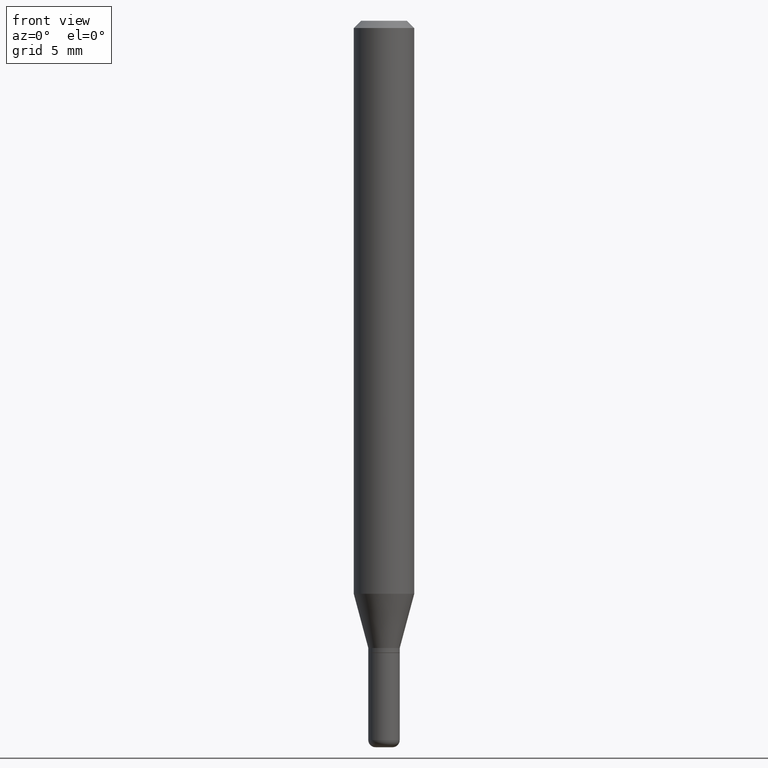
[diagram: clean part render]
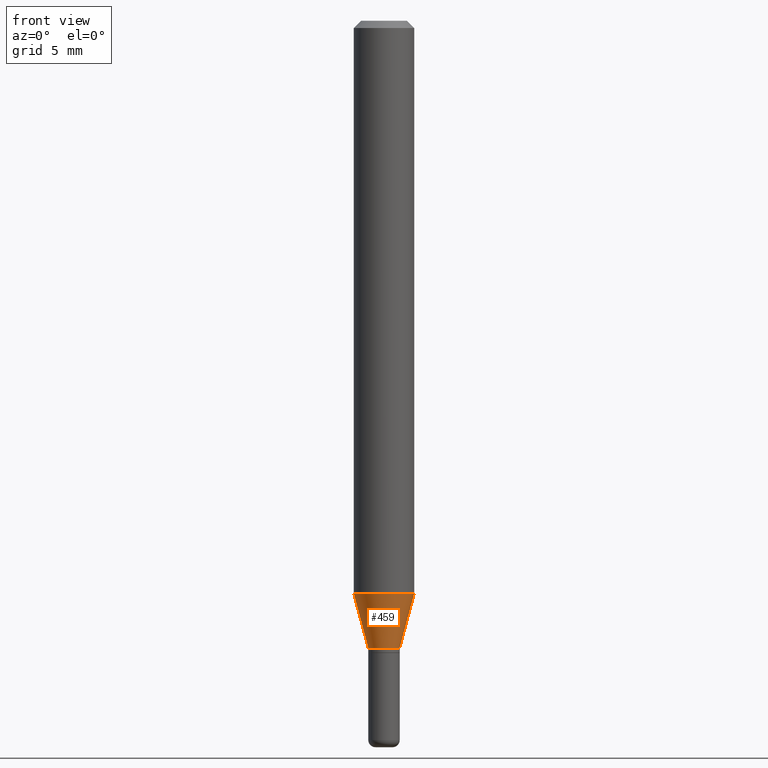
[diagram: same view with one face highlighted and labeled with its STEP entity id]
A machine part, front view. The second image highlights one B-rep face of the part: STEP entity #459.
In plain terms, the highlighted conical surface has half-angle 15 deg.
Its self-contained STEP definition (entity closure, byte-faithful):
#35 = CARTESIAN_POINT ( 'NONE',  ( 2.893083689019520084E-29, -4.130556761294637105E-15, -1.183038475772933751 ) ) ;
#48 = VERTEX_POINT ( 'NONE', #190 ) ;
#67 = DIRECTION ( 'NONE',  ( 1.000000000000000000, -6.982962677686262766E-15, 0.000000000000000000 ) ) ;
#78 = ORIENTED_EDGE ( 'NONE', *, *, #387, .T. ) ;
#101 = DIRECTION ( 'NONE',  ( -2.445468806185136597E-29, 3.491481338843145583E-15, 1.000000000000000000 ) ) ;
#105 = DIRECTION ( 'NONE',  ( 0.2588190451025206285, 1.565188264969627095E-15, 0.9659258262890682012 ) ) ;
#116 = EDGE_CURVE ( 'NONE', #327, #381, #497, .T. ) ;
#125 = AXIS2_PLACEMENT_3D ( 'NONE', #183, #508, #147 ) ;
#131 = LINE ( 'NONE', #501, #219 ) ;
#133 = CIRCLE ( 'NONE', #125, 0.03249999999999998029 ) ;
#147 = DIRECTION ( 'NONE',  ( 1.000000000000000000, -6.982962677686262766E-15, 0.000000000000000000 ) ) ;
#177 = FACE_OUTER_BOUND ( 'NONE', #221, .T. ) ;
#183 = CARTESIAN_POINT ( 'NONE',  ( 3.166882104009752139E-29, -4.521468333801874892E-15, -1.295000000000000151 ) ) ;
#190 = CARTESIAN_POINT ( 'NONE',  ( -0.03249999999999998029, -3.988504748062208899E-15, -1.295000000000000151 ) ) ;
#191 = DIRECTION ( 'NONE',  ( -2.445468806185136597E-29, 3.491481338843145583E-15, 1.000000000000000000 ) ) ;
#206 = CARTESIAN_POINT ( 'NONE',  ( -0.06250000000000000000, -3.686467551444575277E-15, -1.183038475772933751 ) ) ;
#215 = ORIENTED_EDGE ( 'NONE', *, *, #237, .F. ) ;
#219 = VECTOR ( 'NONE', #354, 39.37007874015748854 ) ;
#221 = EDGE_LOOP ( 'NONE', ( #215, #446, #78, #419 ) ) ;
#235 = VECTOR ( 'NONE', #105, 39.37007874015748854 ) ;
#237 = EDGE_CURVE ( 'NONE', #48, #327, #131, .T. ) ;
#242 = AXIS2_PLACEMENT_3D ( 'NONE', #35, #191, #67 ) ;
#260 = DIRECTION ( 'NONE',  ( 1.000000000000000000, -6.982962677686262766E-15, 0.000000000000000000 ) ) ;
#266 = CARTESIAN_POINT ( 'NONE',  ( 0.06250000000000000000, -4.566991928650029563E-15, -1.183038475772933751 ) ) ;
#280 = VERTEX_POINT ( 'NONE', #408 ) ;
#327 = VERTEX_POINT ( 'NONE', #206 ) ;
#352 = CARTESIAN_POINT ( 'NONE',  ( 0.03249999999999998029, -4.748414620826678245E-15, -1.295000000000000151 ) ) ;
#354 = DIRECTION ( 'NONE',  ( -0.2588190451025206285, 5.211531920934544731E-15, 0.9659258262890682012 ) ) ;
#380 = CARTESIAN_POINT ( 'NONE',  ( 3.166882104009752139E-29, -4.521468333801874892E-15, -1.295000000000000151 ) ) ;
#381 = VERTEX_POINT ( 'NONE', #266 ) ;
#387 = EDGE_CURVE ( 'NONE', #280, #381, #504, .T. ) ;
#408 = CARTESIAN_POINT ( 'NONE',  ( 0.03249999999999998029, -4.748414620826678245E-15, -1.295000000000000151 ) ) ;
#419 = ORIENTED_EDGE ( 'NONE', *, *, #116, .F. ) ;
#432 = AXIS2_PLACEMENT_3D ( 'NONE', #380, #101, #260 ) ;
#446 = ORIENTED_EDGE ( 'NONE', *, *, #452, .T. ) ;
#452 = EDGE_CURVE ( 'NONE', #48, #280, #133, .T. ) ;
#459 = ADVANCED_FACE ( 'NONE', ( #177 ), #479, .T. ) ;
#479 = CONICAL_SURFACE ( 'NONE', #432, 0.03249999999999998029, 0.2617993877991493523 ) ;
#497 = CIRCLE ( 'NONE', #242, 0.06250000000000000000 ) ;
#501 = CARTESIAN_POINT ( 'NONE',  ( -0.03249999999999998029, -4.290541944679842521E-15, -1.295000000000000151 ) ) ;
#504 = LINE ( 'NONE', #352, #235 ) ;
#508 = DIRECTION ( 'NONE',  ( -2.445468806185136597E-29, 3.491481338843145583E-15, 1.000000000000000000 ) ) ;